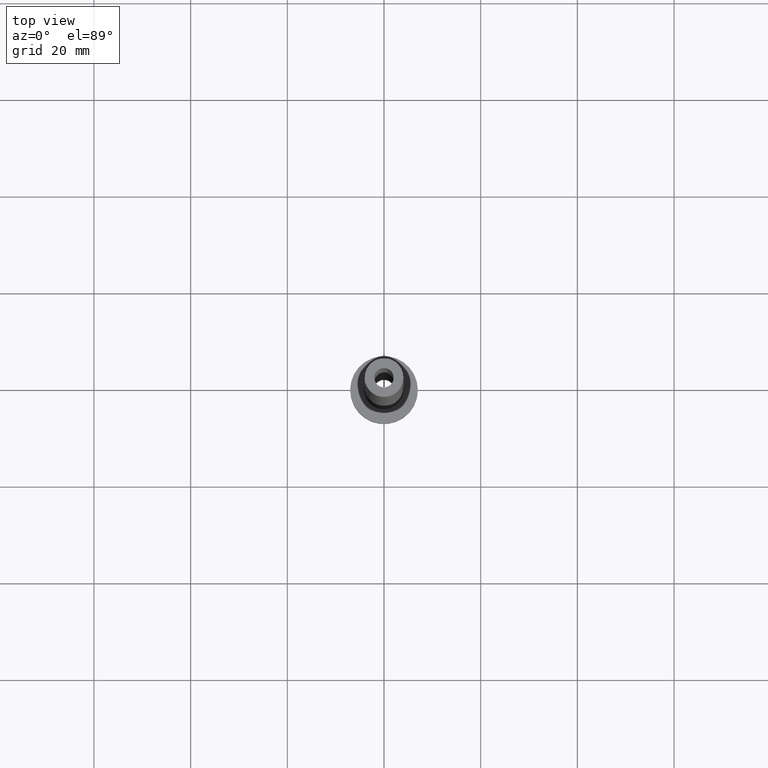
[diagram: clean part render]
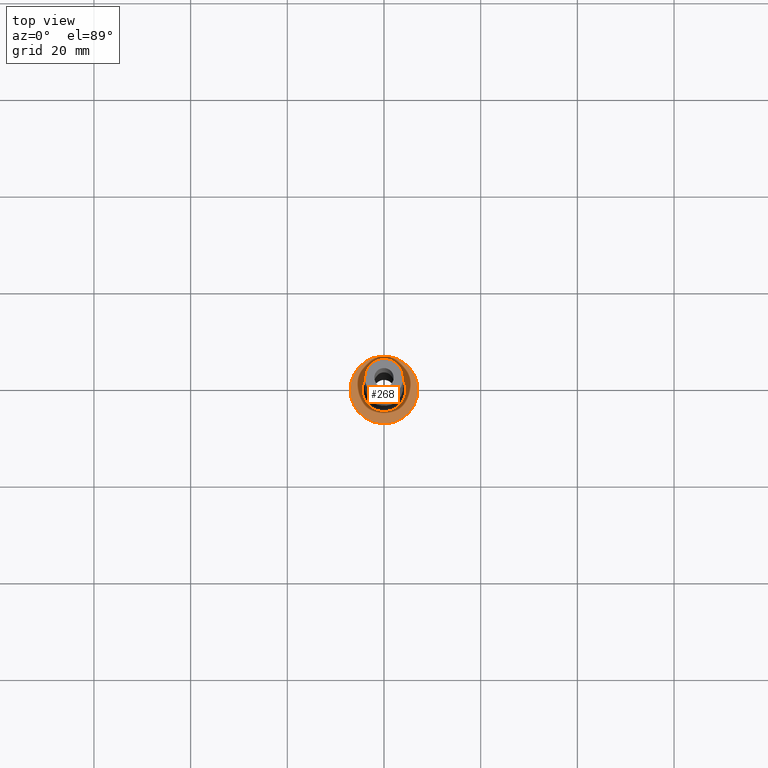
[diagram: same view with one face highlighted and labeled with its STEP entity id]
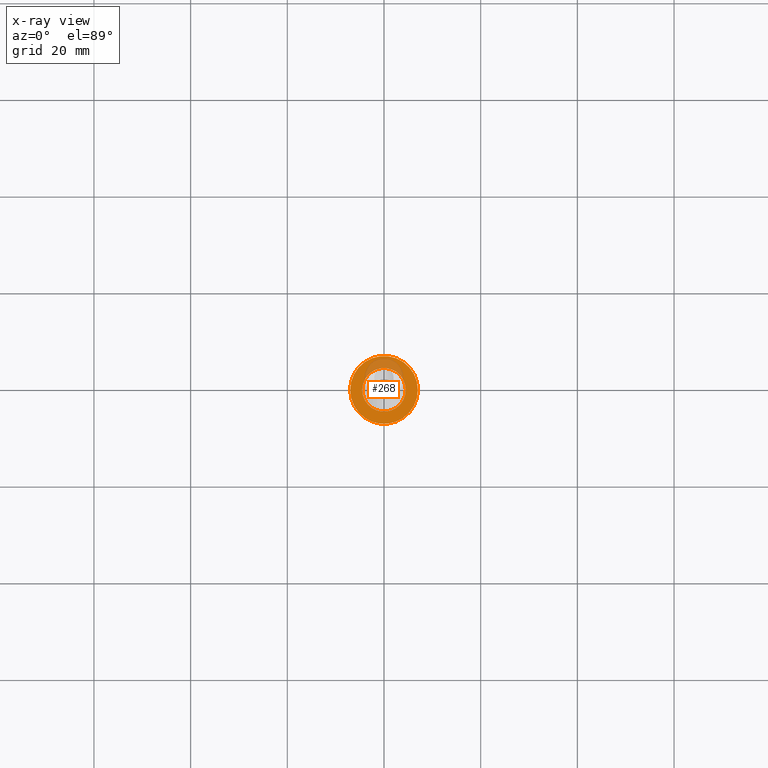
[diagram: x-ray of the same camera — body ghosted, the highlighted face saturated]
A machine part, top view. The second image highlights one B-rep face of the part: STEP entity #268.
The next image is the same camera in x-ray: the body ghosted, the highlighted face saturated — about 17% of this face is hidden behind the body in this view.
In plain terms, the highlighted planar face has unit normal (0, 0, 1).
Its self-contained STEP definition (entity closure, byte-faithful):
#1 = EDGE_LOOP ( 'NONE', ( #318, #249 ) ) ;
#10 = CARTESIAN_POINT ( 'NONE',  ( 0.000000000000000000, 0.000000000000000000, 5.000000000000000000 ) ) ;
#12 = EDGE_CURVE ( 'NONE', #15, #372, #271, .T. ) ;
#15 = VERTEX_POINT ( 'NONE', #234 ) ;
#20 = AXIS2_PLACEMENT_3D ( 'NONE', #54, #352, #198 ) ;
#23 = DIRECTION ( 'NONE',  ( 0.000000000000000000, 0.000000000000000000, 1.000000000000000000 ) ) ;
#33 = CIRCLE ( 'NONE', #425, 4.500000000000000888 ) ;
#44 = CIRCLE ( 'NONE', #104, 7.000000000000000000 ) ;
#54 = CARTESIAN_POINT ( 'NONE',  ( 0.000000000000000000, 0.000000000000000000, 5.000000000000000000 ) ) ;
#56 = DIRECTION ( 'NONE',  ( -0.000000000000000000, -0.000000000000000000, -1.000000000000000000 ) ) ;
#84 = CARTESIAN_POINT ( 'NONE',  ( 0.000000000000000000, 0.000000000000000000, 5.000000000000000000 ) ) ;
#92 = AXIS2_PLACEMENT_3D ( 'NONE', #84, #23, #421 ) ;
#104 = AXIS2_PLACEMENT_3D ( 'NONE', #10, #440, #444 ) ;
#113 = CARTESIAN_POINT ( 'NONE',  ( -4.500000000000000888, 5.510910596163088569E-16, 5.000000000000002665 ) ) ;
#114 = ORIENTED_EDGE ( 'NONE', *, *, #216, .T. ) ;
#125 = CARTESIAN_POINT ( 'NONE',  ( 0.000000000000000000, 0.000000000000000000, 5.000000000000000000 ) ) ;
#141 = CARTESIAN_POINT ( 'NONE',  ( 4.500000000000000888, 0.000000000000000000, 5.000000000000002665 ) ) ;
#169 = FACE_BOUND ( 'NONE', #293, .T. ) ;
#198 = DIRECTION ( 'NONE',  ( 1.000000000000000000, 0.000000000000000000, 0.000000000000000000 ) ) ;
#203 = CARTESIAN_POINT ( 'NONE',  ( 0.000000000000000000, 0.000000000000000000, 5.000000000000000000 ) ) ;
#210 = AXIS2_PLACEMENT_3D ( 'NONE', #125, #457, #238 ) ;
#216 = EDGE_CURVE ( 'NONE', #429, #405, #373, .T. ) ;
#234 = CARTESIAN_POINT ( 'NONE',  ( -7.000000000000000000, 0.000000000000000000, 5.000000000000000000 ) ) ;
#238 = DIRECTION ( 'NONE',  ( 1.000000000000000000, 0.000000000000000000, -0.000000000000000000 ) ) ;
#249 = ORIENTED_EDGE ( 'NONE', *, *, #454, .T. ) ;
#257 = EDGE_CURVE ( 'NONE', #405, #429, #33, .T. ) ;
#268 = ADVANCED_FACE ( 'NONE', ( #169, #276 ), #452, .T. ) ;
#271 = CIRCLE ( 'NONE', #92, 7.000000000000000000 ) ;
#276 = FACE_OUTER_BOUND ( 'NONE', #1, .T. ) ;
#293 = EDGE_LOOP ( 'NONE', ( #300, #114 ) ) ;
#300 = ORIENTED_EDGE ( 'NONE', *, *, #257, .T. ) ;
#318 = ORIENTED_EDGE ( 'NONE', *, *, #12, .T. ) ;
#350 = DIRECTION ( 'NONE',  ( 1.000000000000000000, 0.000000000000000000, 0.000000000000000000 ) ) ;
#352 = DIRECTION ( 'NONE',  ( -0.000000000000000000, -0.000000000000000000, -1.000000000000000000 ) ) ;
#372 = VERTEX_POINT ( 'NONE', #459 ) ;
#373 = CIRCLE ( 'NONE', #20, 4.500000000000000888 ) ;
#405 = VERTEX_POINT ( 'NONE', #141 ) ;
#421 = DIRECTION ( 'NONE',  ( 1.000000000000000000, 0.000000000000000000, 0.000000000000000000 ) ) ;
#425 = AXIS2_PLACEMENT_3D ( 'NONE', #203, #56, #350 ) ;
#429 = VERTEX_POINT ( 'NONE', #113 ) ;
#440 = DIRECTION ( 'NONE',  ( 0.000000000000000000, 0.000000000000000000, 1.000000000000000000 ) ) ;
#444 = DIRECTION ( 'NONE',  ( 1.000000000000000000, 0.000000000000000000, 0.000000000000000000 ) ) ;
#452 = PLANE ( 'NONE',  #210 ) ;
#454 = EDGE_CURVE ( 'NONE', #372, #15, #44, .T. ) ;
#457 = DIRECTION ( 'NONE',  ( 0.000000000000000000, 0.000000000000000000, 1.000000000000000000 ) ) ;
#459 = CARTESIAN_POINT ( 'NONE',  ( 7.000000000000000000, 8.572527594031473190E-16, 5.000000000000000000 ) ) ;